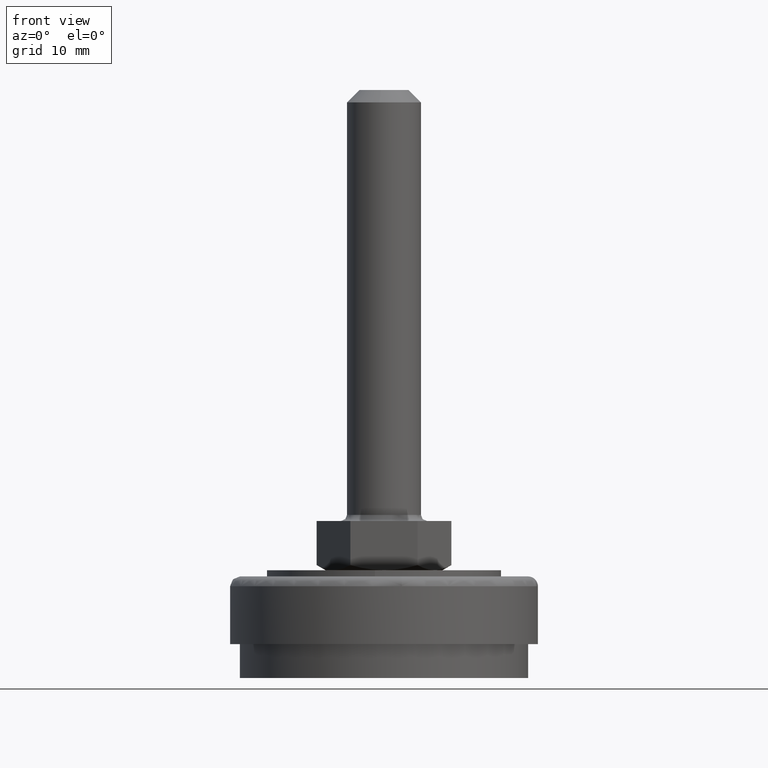
[diagram: clean part render]
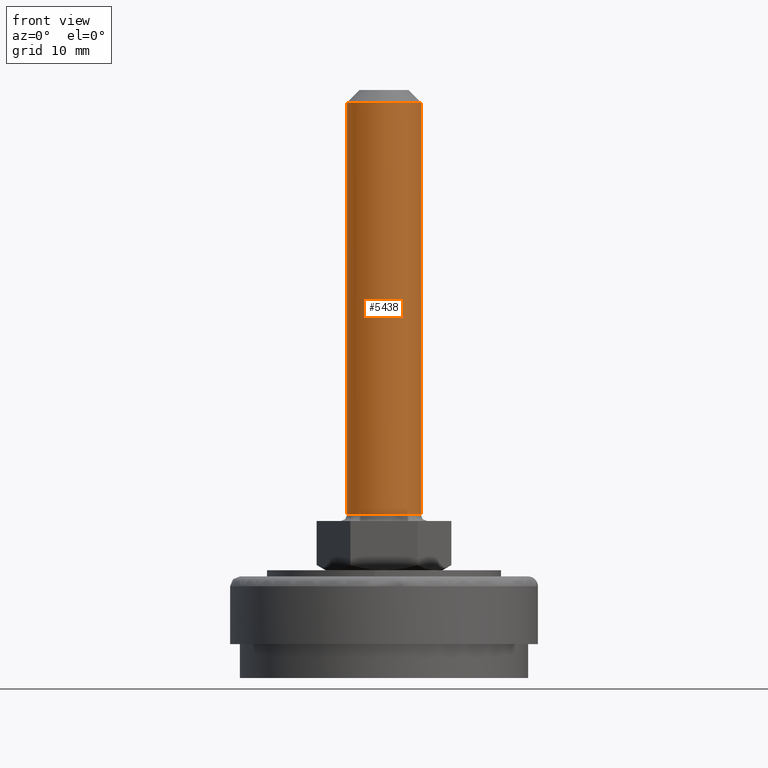
[diagram: same view with one face highlighted and labeled with its STEP entity id]
A machine part, front view. The second image highlights one B-rep face of the part: STEP entity #5438.
In plain terms, the highlighted face is a freeform B-spline surface patch.
Its self-contained STEP definition (entity closure, byte-faithful):
#5160=CARTESIAN_POINT('',(-0.783157153390004,5.948669168233686,93.499999999999986));
#5161=VERTEX_POINT('',#5160);
#5177=CARTESIAN_POINT('',(-6.0,0.0,93.500000000000000));
#5178=VERTEX_POINT('',#5177);
#5179=CARTESIAN_POINT('',(-6.0,0.0,93.500000000000000));
#5180=CARTESIAN_POINT('',(-5.999999999999999,5.261858777832181,93.500000000000014));
#5181=CARTESIAN_POINT('',(-0.783157153390004,5.948669168233686,93.499999999999986));
#5189=(BOUNDED_CURVE()B_SPLINE_CURVE(2,(#5179,#5180,#5181),.UNSPECIFIED.,.F.,.U.)B_SPLINE_CURVE_WITH_KNOTS((3,3),(0.500000000000000,0.727439384440216),.UNSPECIFIED.)CURVE()GEOMETRIC_REPRESENTATION_ITEM()RATIONAL_B_SPLINE_CURVE((1.0,0.733538186425420,0.951907659700648))REPRESENTATION_ITEM(''));
#5190=EDGE_CURVE('',#5178,#5161,#5189,.T.);
#5192=CARTESIAN_POINT('',(-0.744768012976140,-5.953597282954162,93.499999999937359));
#5193=VERTEX_POINT('',#5192);
#5194=CARTESIAN_POINT('',(-0.744768012976140,-5.953597282954162,93.499999999937359));
#5195=CARTESIAN_POINT('',(-6.0,-5.296191600023886,93.500000000000000));
#5196=CARTESIAN_POINT('',(-6.0,0.0,93.500000000000000));
#5204=(BOUNDED_CURVE()B_SPLINE_CURVE(2,(#5194,#5195,#5196),.UNSPECIFIED.,.F.,.U.)B_SPLINE_CURVE_WITH_KNOTS((3,3),(0.271473928998427,0.500000000000000),.UNSPECIFIED.)CURVE()GEOMETRIC_REPRESENTATION_ITEM()RATIONAL_B_SPLINE_CURVE((0.954005430220914,0.732265053926231,1.0))REPRESENTATION_ITEM(''));
#5205=EDGE_CURVE('',#5193,#5178,#5204,.T.);
#5255=CARTESIAN_POINT('',(6.0,0.0,93.500000000000000));
#5256=VERTEX_POINT('',#5255);
#5257=CARTESIAN_POINT('',(6.0,0.0,93.500000000000000));
#5258=CARTESIAN_POINT('',(6.0,-6.0,93.500000000000000));
#5259=CARTESIAN_POINT('',(0.0,-6.0,93.500000000000000));
#5260=CARTESIAN_POINT('',(-0.373829565696086,-6.000000000000001,93.500000000000000));
#5261=CARTESIAN_POINT('',(-0.744768012976140,-5.953597282954162,93.499999999937359));
#5269=(BOUNDED_CURVE()B_SPLINE_CURVE(2,(#5257,#5258,#5259,#5260,#5261),.UNSPECIFIED.,.F.,.U.)B_SPLINE_CURVE_WITH_KNOTS((3,2,3),(0.0,0.250000000000000,0.271473928998427),.UNSPECIFIED.)CURVE()GEOMETRIC_REPRESENTATION_ITEM()RATIONAL_B_SPLINE_CURVE((1.0,0.707106781186548,1.0,0.974841727260317,0.954005430220914))REPRESENTATION_ITEM(''));
#5270=EDGE_CURVE('',#5256,#5193,#5269,.T.);
#5272=CARTESIAN_POINT('',(4.106607057384204,4.374446076503970,93.500000000000000));
#5273=VERTEX_POINT('',#5272);
#5274=CARTESIAN_POINT('',(4.106607057384278,4.374446076504046,93.500000000000000));
#5275=CARTESIAN_POINT('',(6.0,2.596981985150739,93.500000000000000));
#5276=CARTESIAN_POINT('',(6.0,0.0,93.500000000000000));
#5284=(BOUNDED_CURVE()B_SPLINE_CURVE(2,(#5274,#5275,#5276),.UNSPECIFIED.,.F.,.U.)B_SPLINE_CURVE_WITH_KNOTS((3,3),(0.870236002565979,1.0),.UNSPECIFIED.)CURVE()GEOMETRIC_REPRESENTATION_ITEM()RATIONAL_B_SPLINE_CURVE((0.853766107658676,0.847972020421796,1.0))REPRESENTATION_ITEM(''));
#5285=EDGE_CURVE('',#5273,#5256,#5284,.T.);
#5317=CARTESIAN_POINT('',(4.106607876537605,4.374445307505774,95.175000000000011));
#5318=CARTESIAN_POINT('',(5.668961011514869,2.907751535149727,95.175000000000011));
#5319=CARTESIAN_POINT('',(5.948669168242861,0.783157153320308,95.175000000000011));
#5320=CARTESIAN_POINT('',(6.731826321563169,-5.165512014922553,95.175000000000011));
#5321=CARTESIAN_POINT('',(0.783157153320308,-5.948669168242861,95.175000000000011));
#5322=CARTESIAN_POINT('',(-5.165512014922553,-6.731826321563169,95.175000000000011));
#5323=CARTESIAN_POINT('',(-5.948669168242861,-0.783157153320308,95.175000000000011));
#5324=CARTESIAN_POINT('',(-6.731826321563169,5.165512014922553,95.175000000000011));
#5325=CARTESIAN_POINT('',(-0.783157153320308,5.948669168242861,95.175000000000011));
#5326=CARTESIAN_POINT('',(4.106607876537605,4.374445307505774,24.783124999999995));
#5327=CARTESIAN_POINT('',(5.668961011514869,2.907751535149727,24.783125000000005));
#5328=CARTESIAN_POINT('',(5.948669168242861,0.783157153320308,24.783124999999998));
#5329=CARTESIAN_POINT('',(6.731826321563169,-5.165512014922553,24.783125000000002));
#5330=CARTESIAN_POINT('',(0.783157153320308,-5.948669168242861,24.783124999999998));
#5331=CARTESIAN_POINT('',(-5.165512014922553,-6.731826321563169,24.783125000000002));
#5332=CARTESIAN_POINT('',(-5.948669168242861,-0.783157153320308,24.783124999999998));
#5333=CARTESIAN_POINT('',(-6.731826321563169,5.165512014922553,24.783125000000002));
#5334=CARTESIAN_POINT('',(-0.783157153320308,5.948669168242861,24.783124999999998));
#5342=(BOUNDED_SURFACE()B_SPLINE_SURFACE(2,1,((#5317,#5326),(#5318,#5327),(#5319,#5328),(#5320,#5329),(#5321,#5330),(#5322,#5331),(#5323,#5332),(#5324,#5333),(#5325,#5334)),.UNSPECIFIED.,.F.,.F.,.U.)B_SPLINE_SURFACE_WITH_KNOTS((3,2,2,2,3),(2,2),(0.0,4.374095218659883,14.315220715614160,24.256346212568442,34.197471709522723),(0.0,70.391875000000027),.UNSPECIFIED.)GEOMETRIC_REPRESENTATION_ITEM()RATIONAL_B_SPLINE_SURFACE(((0.855662221768731,0.855662221768731),(0.871126983722081,0.871126983722081),(1.0,1.0),(0.707106781186548,0.707106781186548),(1.0,1.0),(0.707106781186548,0.707106781186548),(1.0,1.0),(0.707106781186548,0.707106781186548),(1.0,1.0)))REPRESENTATION_ITEM('')SURFACE());
#5343=CARTESIAN_POINT('',(5.491447035725441,2.417438614282120,26.500000000188550));
#5344=VERTEX_POINT('',#5343);
#5345=CARTESIAN_POINT('',(4.106607018855069,4.374446112674006,26.500000000085560));
#5346=VERTEX_POINT('',#5345);
#5347=CARTESIAN_POINT('',(5.491447035725442,2.417438614282120,26.500000000188550));
#5348=CARTESIAN_POINT('',(4.998540299823604,3.537124226055493,26.500000000129621));
#5349=CARTESIAN_POINT('',(4.106607018855069,4.374446112674006,26.500000000085560));
#5357=(BOUNDED_CURVE()B_SPLINE_CURVE(2,(#5347,#5348,#5349),.UNSPECIFIED.,.F.,.U.)B_SPLINE_CURVE_WITH_KNOTS((3,3),(0.068414990138556,0.129763998763344),.UNSPECIFIED.)CURVE()GEOMETRIC_REPRESENTATION_ITEM()RATIONAL_B_SPLINE_CURVE((0.883563120518140,0.851026814798723,0.853766107777387))REPRESENTATION_ITEM(''));
#5358=EDGE_CURVE('',#5344,#5346,#5357,.T.);
#5359=ORIENTED_EDGE('',*,*,#5358,.T.);
#5360=CARTESIAN_POINT('',(4.106607057384204,4.374446076503970,93.500000000000000));
#5361=CARTESIAN_POINT('',(4.106607018855069,4.374446112674006,26.500000000085560));
#5362=QUASI_UNIFORM_CURVE('',1,(#5360,#5361),.UNSPECIFIED.,.F.,.U.);
#5363=EDGE_CURVE('',#5273,#5346,#5362,.T.);
#5364=ORIENTED_EDGE('',*,*,#5363,.F.);
#5365=ORIENTED_EDGE('',*,*,#5285,.T.);
#5366=ORIENTED_EDGE('',*,*,#5270,.T.);
#5367=ORIENTED_EDGE('',*,*,#5205,.T.);
#5368=ORIENTED_EDGE('',*,*,#5190,.T.);
#5369=CARTESIAN_POINT('',(-0.783157153433293,5.948669168227987,26.500000000000000));
#5370=VERTEX_POINT('',#5369);
#5371=CARTESIAN_POINT('',(-0.783157153390004,5.948669168233686,93.499999999999986));
#5372=CARTESIAN_POINT('',(-0.783157153433293,5.948669168227987,26.500000000000000));
#5373=QUASI_UNIFORM_CURVE('',1,(#5371,#5372),.UNSPECIFIED.,.F.,.U.);
#5374=EDGE_CURVE('',#5161,#5370,#5373,.T.);
#5375=ORIENTED_EDGE('',*,*,#5374,.T.);
#5376=CARTESIAN_POINT('',(-6.0,0.0,26.500000000000000));
#5377=VERTEX_POINT('',#5376);
#5378=CARTESIAN_POINT('',(-0.783157153433293,5.948669168227988,26.500000000000000));
#5379=CARTESIAN_POINT('',(-6.000000000000001,5.261858777754939,26.500000000000007));
#5380=CARTESIAN_POINT('',(-6.0,0.0,26.500000000000000));
#5388=(BOUNDED_CURVE()B_SPLINE_CURVE(2,(#5378,#5379,#5380),.UNSPECIFIED.,.F.,.U.)B_SPLINE_CURVE_WITH_KNOTS((3,3),(0.272560615562233,0.500000000000000),.UNSPECIFIED.)CURVE()GEOMETRIC_REPRESENTATION_ITEM()RATIONAL_B_SPLINE_CURVE((0.951907659695945,0.733538186428289,1.0))REPRESENTATION_ITEM(''));
#5389=EDGE_CURVE('',#5370,#5377,#5388,.T.);
#5390=ORIENTED_EDGE('',*,*,#5389,.T.);
#5391=CARTESIAN_POINT('',(2.417438614306277,-5.491447035714806,26.500000000211340));
#5392=VERTEX_POINT('',#5391);
#5393=CARTESIAN_POINT('',(-6.0,0.0,26.500000000000000));
#5394=CARTESIAN_POINT('',(-6.0,-6.0,26.500000000000000));
#5395=CARTESIAN_POINT('',(0.0,-6.0,26.500000000000000));
#5396=CARTESIAN_POINT('',(1.262211072366900,-6.0,26.499999999999996));
#5397=CARTESIAN_POINT('',(2.417438614306277,-5.491447035714806,26.500000000211340));
#5405=(BOUNDED_CURVE()B_SPLINE_CURVE(2,(#5393,#5394,#5395,#5396,#5397),.UNSPECIFIED.,.F.,.U.)B_SPLINE_CURVE_WITH_KNOTS((3,2,3),(0.500000000000000,0.750000000000000,0.818414990139930),.UNSPECIFIED.)CURVE()GEOMETRIC_REPRESENTATION_ITEM()RATIONAL_B_SPLINE_CURVE((1.0,0.707106781186548,1.0,0.919846853291301,0.883563120516682))REPRESENTATION_ITEM(''));
#5406=EDGE_CURVE('',#5377,#5392,#5405,.T.);
#5407=ORIENTED_EDGE('',*,*,#5406,.T.);
#5408=CARTESIAN_POINT('',(6.0,0.0,26.500000000000000));
#5409=VERTEX_POINT('',#5408);
#5410=CARTESIAN_POINT('',(2.417438614306276,-5.491447035714806,26.500000000211337));
#5411=CARTESIAN_POINT('',(6.000000000000001,-3.914335907140441,26.500000000000000));
#5412=CARTESIAN_POINT('',(6.0,0.0,26.500000000000000));
#5420=(BOUNDED_CURVE()B_SPLINE_CURVE(2,(#5410,#5411,#5412),.UNSPECIFIED.,.F.,.U.)B_SPLINE_CURVE_WITH_KNOTS((3,3),(0.818414990139930,1.0),.UNSPECIFIED.)CURVE()GEOMETRIC_REPRESENTATION_ITEM()RATIONAL_B_SPLINE_CURVE((0.883563120516682,0.787259927895246,1.0))REPRESENTATION_ITEM(''));
#5421=EDGE_CURVE('',#5392,#5409,#5420,.T.);
#5422=ORIENTED_EDGE('',*,*,#5421,.T.);
#5423=CARTESIAN_POINT('',(6.0,0.0,26.500000000000000));
#5424=CARTESIAN_POINT('',(5.999999999999999,1.262211072339333,26.500000000000004));
#5425=CARTESIAN_POINT('',(5.491447035725441,2.417438614282120,26.500000000188543));
#5433=(BOUNDED_CURVE()B_SPLINE_CURVE(2,(#5423,#5424,#5425),.UNSPECIFIED.,.F.,.U.)B_SPLINE_CURVE_WITH_KNOTS((3,3),(0.0,0.068414990138556),.UNSPECIFIED.)CURVE()GEOMETRIC_REPRESENTATION_ITEM()RATIONAL_B_SPLINE_CURVE((1.0,0.919846853292911,0.883563120518140))REPRESENTATION_ITEM(''));
#5434=EDGE_CURVE('',#5409,#5344,#5433,.T.);
#5435=ORIENTED_EDGE('',*,*,#5434,.T.);
#5436=EDGE_LOOP('',(#5359,#5364,#5365,#5366,#5367,#5368,#5375,#5390,#5407,#5422,#5435));
#5437=FACE_OUTER_BOUND('',#5436,.T.);
#5438=ADVANCED_FACE('',(#5437),#5342,.T.);